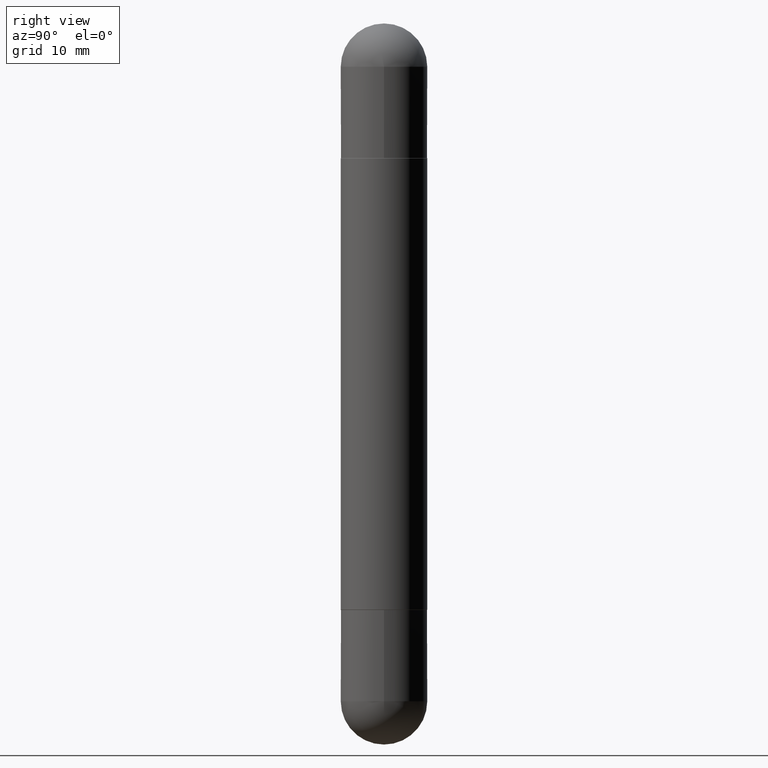
[diagram: clean part render]
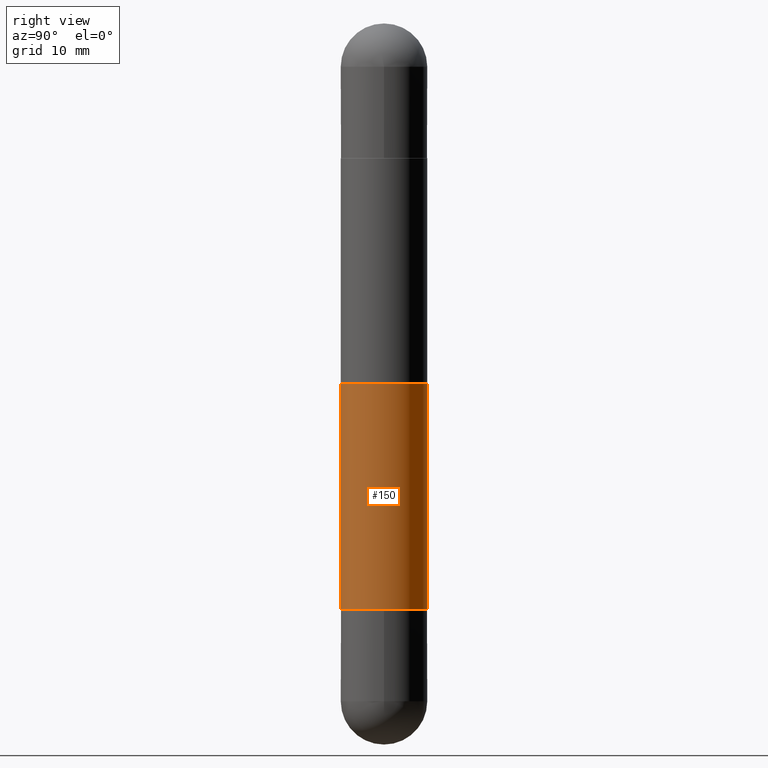
[diagram: same view with one face highlighted and labeled with its STEP entity id]
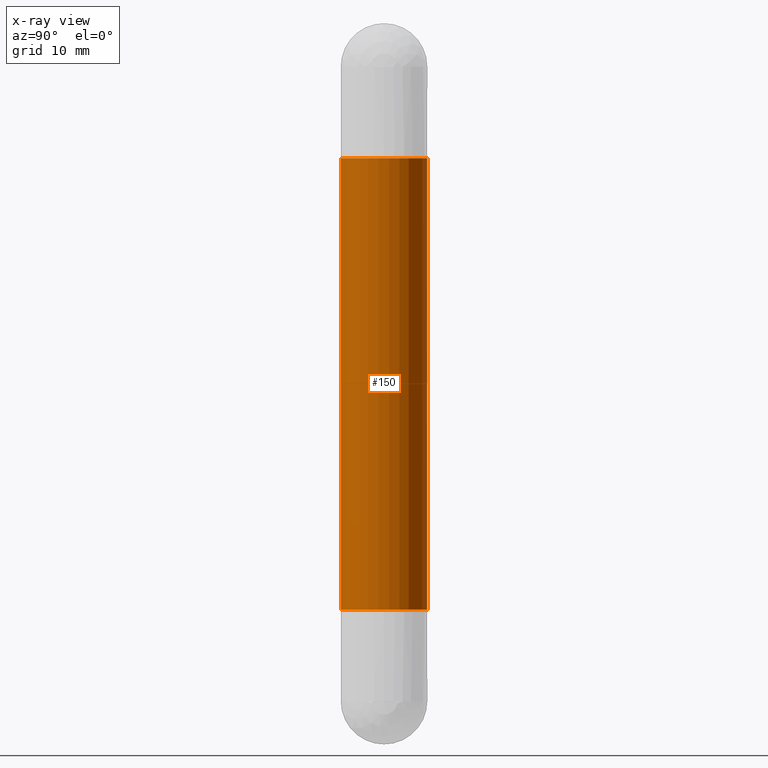
[diagram: x-ray of the same camera — body ghosted, the highlighted face saturated]
A machine part, right view. The second image highlights one B-rep face of the part: STEP entity #150.
The next image is the same camera in x-ray: the body ghosted, the highlighted face saturated — about 0% of this face is hidden behind the body in this view.
In plain terms, the highlighted cylindrical surface (partial cylindrical patch) has radius 4.4996 mm, axis along (-0, 0, -1).
Its self-contained STEP definition (entity closure, byte-faithful):
#34 = CARTESIAN_POINT ( 'NONE',  ( 0.000000000000000000, 0.000000000000000000, -2.952799999999999869 ) ) ;
#68 = CIRCLE ( 'NONE', #172, 0.1771500000000003350 ) ;
#85 = ORIENTED_EDGE ( 'NONE', *, *, #439, .F. ) ;
#142 = CIRCLE ( 'NONE', #526, 0.1771500000000003350 ) ;
#144 = DIRECTION ( 'NONE',  ( -2.444945301580279245E-29, 3.492231027233333225E-15, 1.000000000000000000 ) ) ;
#150 = ADVANCED_FACE ( 'NONE', ( #260 ), #392, .T. ) ;
#172 = AXIS2_PLACEMENT_3D ( 'NONE', #627, #568, #316 ) ;
#185 = DIRECTION ( 'NONE',  ( -2.444945301580279245E-29, 3.492231027233333620E-15, -1.000000000000000000 ) ) ;
#186 = CARTESIAN_POINT ( 'NONE',  ( 1.215337220305287643E-15, 0.1771499999999919250, -0.5521999999999995801 ) ) ;
#260 = FACE_OUTER_BOUND ( 'NONE', #594, .T. ) ;
#285 = VERTEX_POINT ( 'NONE', #679 ) ;
#305 = CARTESIAN_POINT ( 'NONE',  ( -1.237031838352123183E-15, -0.1771500000000001962, -2.952800000000000313 ) ) ;
#315 = VERTEX_POINT ( 'NONE', #485 ) ;
#316 = DIRECTION ( 'NONE',  ( -6.982962677686265133E-15, -1.000000000000000000, -3.469747663417770691E-15 ) ) ;
#361 = ORIENTED_EDGE ( 'NONE', *, *, #443, .F. ) ;
#365 = AXIS2_PLACEMENT_3D ( 'NONE', #34, #395, #581 ) ;
#387 = VERTEX_POINT ( 'NONE', #186 ) ;
#392 = CYLINDRICAL_SURFACE ( 'NONE', #365, 0.1771500000000001962 ) ;
#395 = DIRECTION ( 'NONE',  ( -2.444945301580279245E-29, 3.492231027233333225E-15, -1.000000000000000000 ) ) ;
#427 = EDGE_CURVE ( 'NONE', #697, #285, #561, .T. ) ;
#435 = VECTOR ( 'NONE', #185, 39.37007874015748143 ) ;
#439 = EDGE_CURVE ( 'NONE', #697, #387, #68, .T. ) ;
#443 = EDGE_CURVE ( 'NONE', #387, #315, #749, .T. ) ;
#485 = CARTESIAN_POINT ( 'NONE',  ( 1.215337220305264569E-15, 0.1771499999999919250, -2.400600000000000289 ) ) ;
#503 = VECTOR ( 'NONE', #815, 39.37007874015748143 ) ;
#516 = CARTESIAN_POINT ( 'NONE',  ( 5.869335690973616704E-29, -8.383449803976338802E-15, -2.400599999999999401 ) ) ;
#526 = AXIS2_PLACEMENT_3D ( 'NONE', #516, #144, #703 ) ;
#540 = ORIENTED_EDGE ( 'NONE', *, *, #427, .T. ) ;
#561 = LINE ( 'NONE', #305, #503 ) ;
#568 = DIRECTION ( 'NONE',  ( 2.444945301580279245E-29, -3.492231027233333225E-15, 1.000000000000000000 ) ) ;
#571 = CARTESIAN_POINT ( 'NONE',  ( 1.215337220305227887E-15, 0.1771500000000001962, -2.952799999999998981 ) ) ;
#581 = DIRECTION ( 'NONE',  ( -6.982962677686265133E-15, -1.000000000000000000, -3.084220145260243069E-15 ) ) ;
#585 = ORIENTED_EDGE ( 'NONE', *, *, #600, .T. ) ;
#594 = EDGE_LOOP ( 'NONE', ( #361, #85, #540, #585 ) ) ;
#597 = CARTESIAN_POINT ( 'NONE',  ( -1.237031838352065793E-15, -0.1771500000000087172, -0.5522000000000008013 ) ) ;
#600 = EDGE_CURVE ( 'NONE', #285, #315, #142, .T. ) ;
#627 = CARTESIAN_POINT ( 'NONE',  ( 5.869335690973616704E-29, -8.383449803976338802E-15, -0.5522000000000002462 ) ) ;
#679 = CARTESIAN_POINT ( 'NONE',  ( -1.237031838352065399E-15, -0.1771500000000087172, -2.400599999999998957 ) ) ;
#697 = VERTEX_POINT ( 'NONE', #597 ) ;
#703 = DIRECTION ( 'NONE',  ( -6.982962677686265133E-15, -1.000000000000000000, 3.084220145260240702E-15 ) ) ;
#749 = LINE ( 'NONE', #571, #435 ) ;
#815 = DIRECTION ( 'NONE',  ( -2.444945301580279245E-29, 3.492231027233333620E-15, -1.000000000000000000 ) ) ;